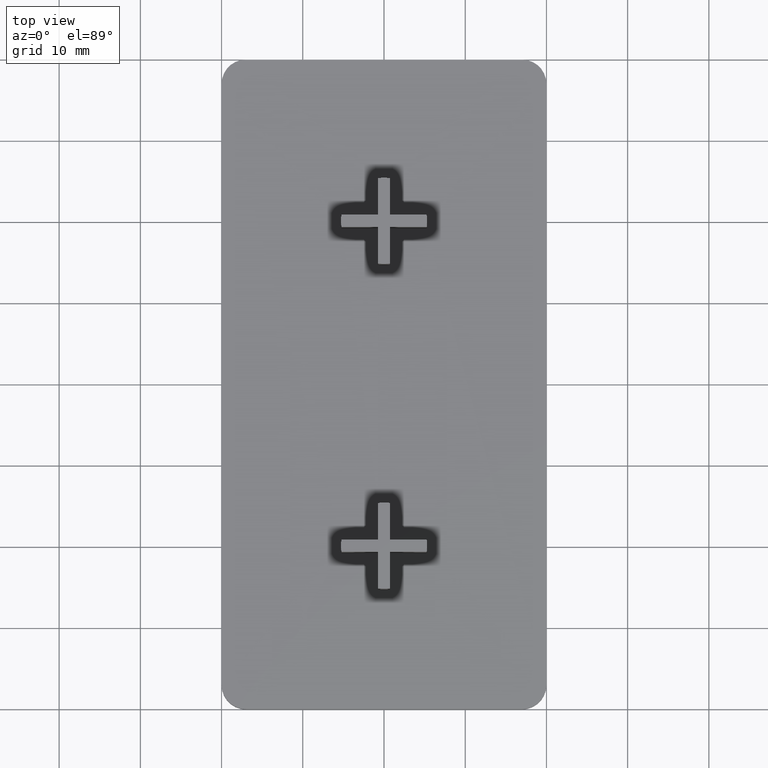
[diagram: clean part render]
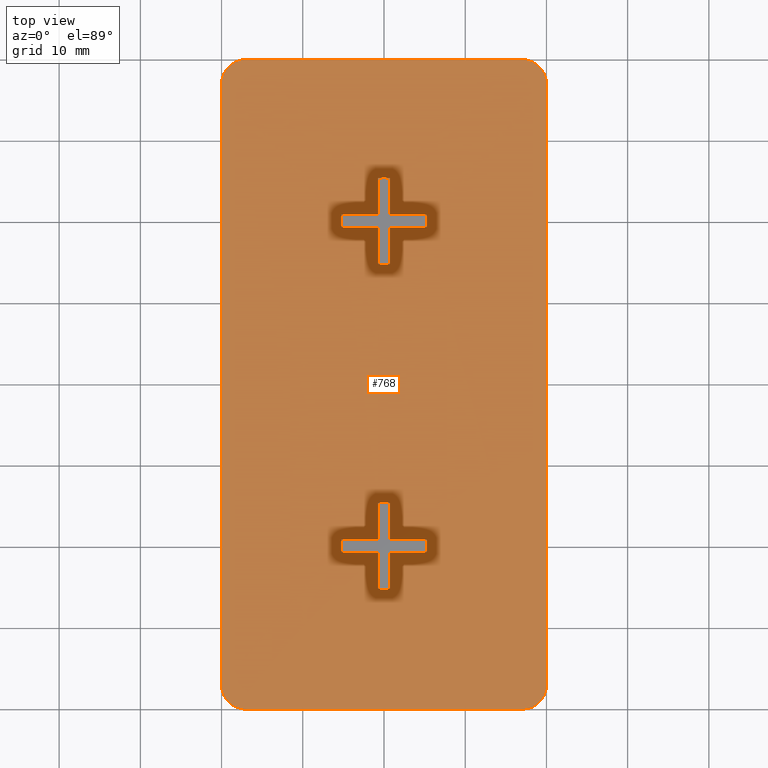
[diagram: same view with one face highlighted and labeled with its STEP entity id]
A machine part, top view. The second image highlights one B-rep face of the part: STEP entity #768.
In plain terms, the highlighted planar face has unit normal (0, 0, 1).
Its self-contained STEP definition (entity closure, byte-faithful):
#50=FACE_BOUND('',#171,.T.);
#51=FACE_BOUND('',#172,.T.);
#52=CIRCLE('',#774,5.3);
#54=CIRCLE('',#779,5.29999999999998);
#56=CIRCLE('',#784,5.30000000000003);
#58=CIRCLE('',#789,5.3);
#60=CIRCLE('',#795,5.3);
#62=CIRCLE('',#800,5.29999999999997);
#64=CIRCLE('',#805,5.30000000000003);
#66=CIRCLE('',#810,5.30000000000001);
#69=CIRCLE('',#817,3.);
#71=CIRCLE('',#821,3.);
#73=CIRCLE('',#825,3.);
#75=CIRCLE('',#829,3.);
#134=FACE_OUTER_BOUND('',#170,.T.);
#170=EDGE_LOOP('',(#670,#671,#672,#673,#674,#675,#676,#677));
#171=EDGE_LOOP('',(#678,#679,#680,#681,#682,#683,#684,#685,#686,#687,#688,
#689));
#172=EDGE_LOOP('',(#690,#691,#692,#693,#694,#695,#696,#697,#698,#699,#700,
#701));
#174=LINE('',#1086,#266);
#179=LINE('',#1100,#271);
#182=LINE('',#1106,#274);
#186=LINE('',#1118,#278);
#189=LINE('',#1124,#281);
#193=LINE('',#1136,#285);
#196=LINE('',#1142,#288);
#200=LINE('',#1153,#292);
#202=LINE('',#1159,#294);
#207=LINE('',#1173,#299);
#210=LINE('',#1179,#302);
#214=LINE('',#1191,#306);
#217=LINE('',#1197,#309);
#221=LINE('',#1209,#313);
#224=LINE('',#1215,#316);
#228=LINE('',#1226,#320);
#232=LINE('',#1236,#324);
#236=LINE('',#1248,#328);
#240=LINE('',#1260,#332);
#244=LINE('',#1272,#336);
#266=VECTOR('',#848,4.49666560779321);
#271=VECTOR('',#861,4.49666560779321);
#274=VECTOR('',#866,4.49666560779318);
#278=VECTOR('',#878,4.49666560779318);
#281=VECTOR('',#883,4.49666560779323);
#285=VECTOR('',#895,4.49666560779324);
#288=VECTOR('',#900,4.4966656077932);
#292=VECTOR('',#912,4.4966656077932);
#294=VECTOR('',#918,4.49666560779321);
#299=VECTOR('',#931,4.4966656077932);
#302=VECTOR('',#936,4.4966656077932);
#306=VECTOR('',#948,4.49666560779319);
#309=VECTOR('',#953,4.4966656077932);
#313=VECTOR('',#965,4.4966656077932);
#316=VECTOR('',#970,4.49666560779321);
#320=VECTOR('',#982,4.49666560779321);
#324=VECTOR('',#990,34.);
#328=VECTOR('',#1002,74.);
#332=VECTOR('',#1014,34.);
#336=VECTOR('',#1026,74.);
#358=VERTEX_POINT('',#1084);
#359=VERTEX_POINT('',#1085);
#362=VERTEX_POINT('',#1093);
#364=VERTEX_POINT('',#1099);
#366=VERTEX_POINT('',#1105);
#368=VERTEX_POINT('',#1111);
#370=VERTEX_POINT('',#1117);
#372=VERTEX_POINT('',#1123);
#374=VERTEX_POINT('',#1129);
#376=VERTEX_POINT('',#1135);
#378=VERTEX_POINT('',#1141);
#380=VERTEX_POINT('',#1147);
#382=VERTEX_POINT('',#1157);
#383=VERTEX_POINT('',#1158);
#386=VERTEX_POINT('',#1166);
#388=VERTEX_POINT('',#1172);
#390=VERTEX_POINT('',#1178);
#392=VERTEX_POINT('',#1184);
#394=VERTEX_POINT('',#1190);
#396=VERTEX_POINT('',#1196);
#398=VERTEX_POINT('',#1202);
#400=VERTEX_POINT('',#1208);
#402=VERTEX_POINT('',#1214);
#404=VERTEX_POINT('',#1220);
#408=VERTEX_POINT('',#1233);
#409=VERTEX_POINT('',#1235);
#411=VERTEX_POINT('',#1241);
#413=VERTEX_POINT('',#1247);
#415=VERTEX_POINT('',#1253);
#417=VERTEX_POINT('',#1259);
#419=VERTEX_POINT('',#1265);
#421=VERTEX_POINT('',#1271);
#422=EDGE_CURVE('',#358,#359,#174,.T.);
#426=EDGE_CURVE('',#362,#358,#52,.T.);
#429=EDGE_CURVE('',#364,#362,#179,.T.);
#432=EDGE_CURVE('',#366,#364,#182,.T.);
#435=EDGE_CURVE('',#368,#366,#54,.T.);
#438=EDGE_CURVE('',#370,#368,#186,.T.);
#441=EDGE_CURVE('',#359,#372,#189,.T.);
#444=EDGE_CURVE('',#372,#374,#56,.T.);
#447=EDGE_CURVE('',#374,#376,#193,.T.);
#450=EDGE_CURVE('',#376,#378,#196,.T.);
#453=EDGE_CURVE('',#378,#380,#58,.T.);
#456=EDGE_CURVE('',#380,#370,#200,.T.);
#458=EDGE_CURVE('',#382,#383,#202,.T.);
#462=EDGE_CURVE('',#386,#382,#60,.T.);
#465=EDGE_CURVE('',#388,#386,#207,.T.);
#468=EDGE_CURVE('',#390,#388,#210,.T.);
#471=EDGE_CURVE('',#392,#390,#62,.T.);
#474=EDGE_CURVE('',#394,#392,#214,.T.);
#477=EDGE_CURVE('',#383,#396,#217,.T.);
#480=EDGE_CURVE('',#396,#398,#64,.T.);
#483=EDGE_CURVE('',#398,#400,#221,.T.);
#486=EDGE_CURVE('',#400,#402,#224,.T.);
#489=EDGE_CURVE('',#402,#404,#66,.T.);
#492=EDGE_CURVE('',#404,#394,#228,.T.);
#496=EDGE_CURVE('',#409,#408,#232,.T.);
#499=EDGE_CURVE('',#411,#409,#69,.T.);
#502=EDGE_CURVE('',#413,#411,#236,.T.);
#505=EDGE_CURVE('',#415,#413,#71,.T.);
#508=EDGE_CURVE('',#417,#415,#240,.T.);
#511=EDGE_CURVE('',#419,#417,#73,.T.);
#514=EDGE_CURVE('',#421,#419,#244,.T.);
#517=EDGE_CURVE('',#408,#421,#75,.T.);
#670=ORIENTED_EDGE('',*,*,#517,.T.);
#671=ORIENTED_EDGE('',*,*,#514,.T.);
#672=ORIENTED_EDGE('',*,*,#511,.T.);
#673=ORIENTED_EDGE('',*,*,#508,.T.);
#674=ORIENTED_EDGE('',*,*,#505,.T.);
#675=ORIENTED_EDGE('',*,*,#502,.T.);
#676=ORIENTED_EDGE('',*,*,#499,.T.);
#677=ORIENTED_EDGE('',*,*,#496,.T.);
#678=ORIENTED_EDGE('',*,*,#438,.T.);
#679=ORIENTED_EDGE('',*,*,#435,.T.);
#680=ORIENTED_EDGE('',*,*,#432,.T.);
#681=ORIENTED_EDGE('',*,*,#429,.T.);
#682=ORIENTED_EDGE('',*,*,#426,.T.);
#683=ORIENTED_EDGE('',*,*,#422,.T.);
#684=ORIENTED_EDGE('',*,*,#441,.T.);
#685=ORIENTED_EDGE('',*,*,#444,.T.);
#686=ORIENTED_EDGE('',*,*,#447,.T.);
#687=ORIENTED_EDGE('',*,*,#450,.T.);
#688=ORIENTED_EDGE('',*,*,#453,.T.);
#689=ORIENTED_EDGE('',*,*,#456,.T.);
#690=ORIENTED_EDGE('',*,*,#474,.T.);
#691=ORIENTED_EDGE('',*,*,#471,.T.);
#692=ORIENTED_EDGE('',*,*,#468,.T.);
#693=ORIENTED_EDGE('',*,*,#465,.T.);
#694=ORIENTED_EDGE('',*,*,#462,.T.);
#695=ORIENTED_EDGE('',*,*,#458,.T.);
#696=ORIENTED_EDGE('',*,*,#477,.T.);
#697=ORIENTED_EDGE('',*,*,#480,.T.);
#698=ORIENTED_EDGE('',*,*,#483,.T.);
#699=ORIENTED_EDGE('',*,*,#486,.T.);
#700=ORIENTED_EDGE('',*,*,#489,.T.);
#701=ORIENTED_EDGE('',*,*,#492,.T.);
#732=PLANE('',#830);
#768=ADVANCED_FACE('',(#134,#50,#51),#732,.T.);
#774=AXIS2_PLACEMENT_3D('',#1094,#854,#855);
#779=AXIS2_PLACEMENT_3D('',#1112,#871,#872);
#784=AXIS2_PLACEMENT_3D('',#1130,#888,#889);
#789=AXIS2_PLACEMENT_3D('',#1148,#905,#906);
#795=AXIS2_PLACEMENT_3D('',#1167,#924,#925);
#800=AXIS2_PLACEMENT_3D('',#1185,#941,#942);
#805=AXIS2_PLACEMENT_3D('',#1203,#958,#959);
#810=AXIS2_PLACEMENT_3D('',#1221,#975,#976);
#817=AXIS2_PLACEMENT_3D('',#1242,#996,#997);
#821=AXIS2_PLACEMENT_3D('',#1254,#1008,#1009);
#825=AXIS2_PLACEMENT_3D('',#1266,#1020,#1021);
#829=AXIS2_PLACEMENT_3D('',#1276,#1032,#1033);
#830=AXIS2_PLACEMENT_3D('',#1277,#1034,#1035);
#848=DIRECTION('',(-1.,-9.87596696272918E-15,0.));
#854=DIRECTION('center_axis',(0.,0.,-1.));
#855=DIRECTION('ref_axis',(0.989936907130794,-0.141509433962256,0.));
#861=DIRECTION('',(1.,-5.92558017763751E-15,0.));
#866=DIRECTION('',(9.87596696272925E-16,-1.,0.));
#871=DIRECTION('center_axis',(0.,0.,-1.));
#872=DIRECTION('ref_axis',(0.141509433962264,0.989936907130793,0.));
#878=DIRECTION('',(0.,1.,0.));
#883=DIRECTION('',(0.,-1.,0.));
#888=DIRECTION('center_axis',(0.,0.,-1.));
#889=DIRECTION('ref_axis',(-0.141509433962249,-0.989936907130795,0.));
#895=DIRECTION('',(-1.58015471403666E-14,1.,0.));
#900=DIRECTION('',(-1.,0.,0.));
#905=DIRECTION('center_axis',(0.,0.,-1.));
#906=DIRECTION('ref_axis',(-0.989936907130793,0.141509433962264,0.));
#912=DIRECTION('',(1.,0.,0.));
#918=DIRECTION('',(1.,1.58015471403667E-14,0.));
#924=DIRECTION('center_axis',(0.,0.,-1.));
#925=DIRECTION('ref_axis',(-0.989936907130794,0.141509433962252,0.));
#931=DIRECTION('',(-1.,0.,0.));
#936=DIRECTION('',(-1.77767405329125E-14,1.,0.));
#941=DIRECTION('center_axis',(0.,0.,-1.));
#942=DIRECTION('ref_axis',(-0.141509433962246,-0.989936907130795,0.));
#948=DIRECTION('',(0.,-1.,0.));
#953=DIRECTION('',(0.,1.,0.));
#958=DIRECTION('center_axis',(0.,0.,-1.));
#959=DIRECTION('ref_axis',(0.141509433962264,0.989936907130793,0.));
#965=DIRECTION('',(-9.87596696272919E-16,-1.,0.));
#970=DIRECTION('',(1.,0.,0.));
#975=DIRECTION('center_axis',(0.,0.,-1.));
#976=DIRECTION('ref_axis',(0.989936907130792,-0.141509433962267,0.));
#982=DIRECTION('',(-1.,0.,0.));
#990=DIRECTION('',(-1.,1.30614473485313E-15,0.));
#996=DIRECTION('center_axis',(0.,0.,1.));
#997=DIRECTION('ref_axis',(1.,0.,0.));
#1002=DIRECTION('',(2.40048221540574E-16,1.,0.));
#1008=DIRECTION('center_axis',(0.,0.,1.));
#1009=DIRECTION('ref_axis',(1.18423789293351E-14,-1.,0.));
#1014=DIRECTION('',(1.,5.22457893941249E-16,0.));
#1020=DIRECTION('center_axis',(0.,0.,1.));
#1021=DIRECTION('ref_axis',(-1.,-1.48029736616688E-15,0.));
#1026=DIRECTION('',(-6.00120553851436E-17,-1.,0.));
#1032=DIRECTION('center_axis',(0.,0.,1.));
#1033=DIRECTION('ref_axis',(0.,1.,0.));
#1034=DIRECTION('center_axis',(0.,0.,1.));
#1035=DIRECTION('ref_axis',(1.,0.,0.));
#1084=CARTESIAN_POINT('',(5.24666560779321,-0.749999999999957,2.5));
#1085=CARTESIAN_POINT('',(0.749999999999997,-0.750000000000002,2.5));
#1086=CARTESIAN_POINT('',(0.375000000000096,-0.750000000000007,2.5));
#1093=CARTESIAN_POINT('',(5.24666560779321,0.749999999999971,2.5));
#1094=CARTESIAN_POINT('Origin',(0.,0.,2.5));
#1099=CARTESIAN_POINT('',(0.749999999999997,0.749999999999997,2.5));
#1100=CARTESIAN_POINT('',(2.62333280389654,0.749999999999985,2.5));
#1105=CARTESIAN_POINT('',(0.749999999999993,5.24666560779318,2.5));
#1106=CARTESIAN_POINT('',(0.749999999999988,10.375,2.5));
#1111=CARTESIAN_POINT('',(-0.750000000000002,5.24666560779318,2.5));
#1112=CARTESIAN_POINT('Origin',(-4.44089209850063E-15,0.,2.5));
#1117=CARTESIAN_POINT('',(-0.750000000000002,0.749999999999997,2.5));
#1118=CARTESIAN_POINT('',(-0.750000000000002,12.6233328038966,2.5));
#1123=CARTESIAN_POINT('',(0.749999999999997,-5.24666560779323,2.5));
#1124=CARTESIAN_POINT('',(0.749999999999997,7.37666719610338,2.5));
#1129=CARTESIAN_POINT('',(-0.749999999999931,-5.24666560779325,2.5));
#1130=CARTESIAN_POINT('Origin',(-4.44089209850063E-15,0.,2.5));
#1135=CARTESIAN_POINT('',(-0.750000000000002,-0.750000000000002,2.5));
#1136=CARTESIAN_POINT('',(-0.750000000000166,9.62499999999999,2.5));
#1141=CARTESIAN_POINT('',(-5.2466656077932,-0.750000000000002,2.5));
#1142=CARTESIAN_POINT('',(-2.6233328038966,-0.750000000000003,2.5));
#1147=CARTESIAN_POINT('',(-5.2466656077932,0.749999999999997,2.5));
#1148=CARTESIAN_POINT('Origin',(0.,0.,2.5));
#1153=CARTESIAN_POINT('',(-0.375000000000006,0.749999999999996,2.5));
#1157=CARTESIAN_POINT('',(-5.24666560779321,40.7499999999999,2.5));
#1158=CARTESIAN_POINT('',(-0.750000000000002,40.75,2.5));
#1159=CARTESIAN_POINT('',(-0.37500000000017,40.75,2.5));
#1166=CARTESIAN_POINT('',(-5.2466656077932,39.25,2.5));
#1167=CARTESIAN_POINT('Origin',(0.,40.,2.5));
#1172=CARTESIAN_POINT('',(-0.750000000000002,39.25,2.5));
#1173=CARTESIAN_POINT('',(-2.62333280389661,39.25,2.5));
#1178=CARTESIAN_POINT('',(-0.749999999999922,34.7533343922068,2.5));
#1179=CARTESIAN_POINT('',(-0.749999999999831,29.625,2.5));
#1184=CARTESIAN_POINT('',(0.749999999999997,34.7533343922068,2.5));
#1185=CARTESIAN_POINT('Origin',(-2.22044604925031E-14,40.,2.5));
#1190=CARTESIAN_POINT('',(0.749999999999997,39.25,2.5));
#1191=CARTESIAN_POINT('',(0.749999999999997,27.3766671961034,2.5));
#1196=CARTESIAN_POINT('',(-0.750000000000002,45.2466656077932,2.5));
#1197=CARTESIAN_POINT('',(-0.750000000000002,32.6233328038966,2.5));
#1202=CARTESIAN_POINT('',(0.750000000000002,45.2466656077932,2.5));
#1203=CARTESIAN_POINT('Origin',(0.,40.,2.5));
#1208=CARTESIAN_POINT('',(0.749999999999997,40.75,2.5));
#1209=CARTESIAN_POINT('',(0.749999999999987,30.375,2.5));
#1214=CARTESIAN_POINT('',(5.24666560779321,40.75,2.5));
#1215=CARTESIAN_POINT('',(2.6233328038966,40.75,2.5));
#1220=CARTESIAN_POINT('',(5.24666560779321,39.25,2.5));
#1221=CARTESIAN_POINT('Origin',(0.,40.,2.5));
#1226=CARTESIAN_POINT('',(0.374999999999993,39.25,2.5));
#1233=CARTESIAN_POINT('',(-17.,60.,2.5));
#1235=CARTESIAN_POINT('',(17.,60.,2.5));
#1236=CARTESIAN_POINT('',(17.,60.,2.5));
#1241=CARTESIAN_POINT('',(20.,57.,2.5));
#1242=CARTESIAN_POINT('Origin',(17.,57.,2.5));
#1247=CARTESIAN_POINT('',(20.,-17.,2.5));
#1248=CARTESIAN_POINT('',(20.,-17.,2.5));
#1253=CARTESIAN_POINT('',(17.,-20.,2.5));
#1254=CARTESIAN_POINT('Origin',(17.,-17.,2.5));
#1259=CARTESIAN_POINT('',(-17.,-20.,2.5));
#1260=CARTESIAN_POINT('',(-17.,-20.,2.5));
#1265=CARTESIAN_POINT('',(-20.,-17.,2.5));
#1266=CARTESIAN_POINT('Origin',(-17.,-17.,2.5));
#1271=CARTESIAN_POINT('',(-20.,57.,2.5));
#1272=CARTESIAN_POINT('',(-20.,57.,2.5));
#1276=CARTESIAN_POINT('Origin',(-17.,57.,2.5));
#1277=CARTESIAN_POINT('Origin',(-1.08037502012171E-14,20.,2.5));